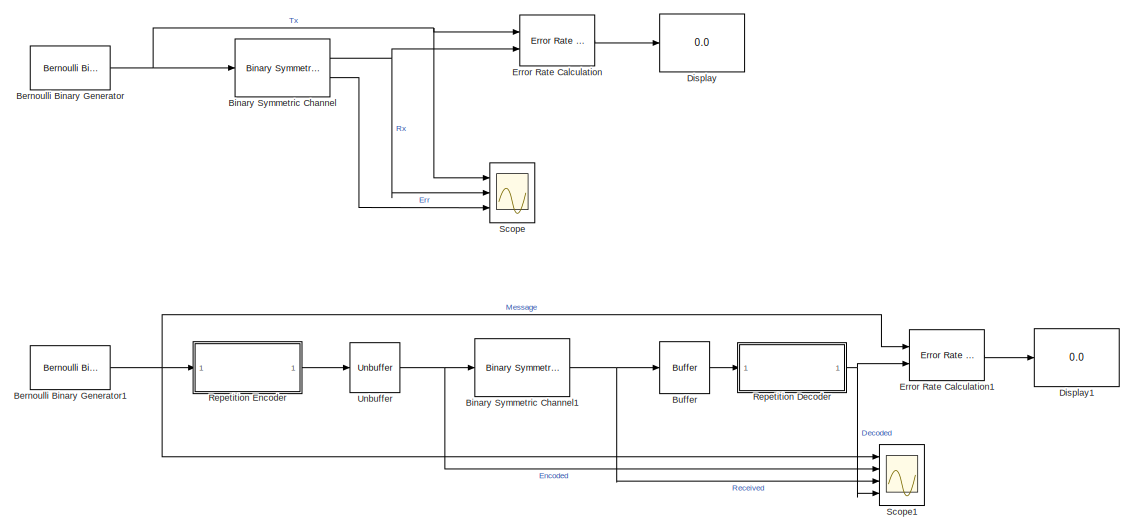
[diagram: root canvas - part 1/2, full width, top band]
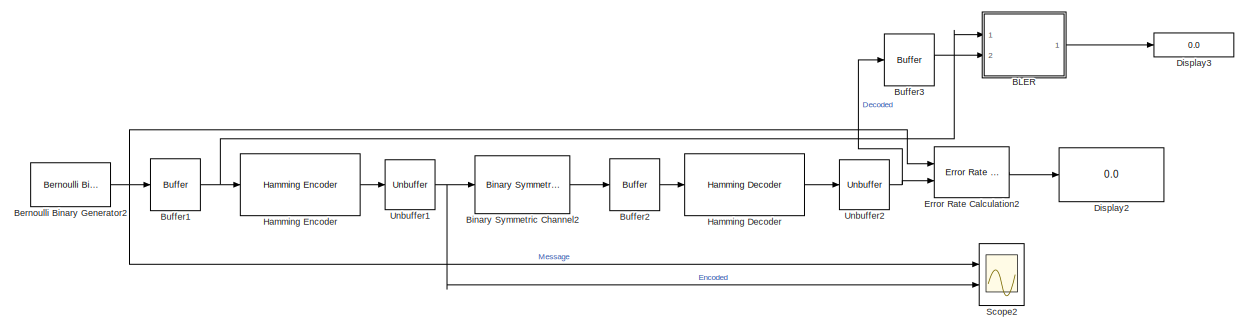
[diagram: root canvas - part 2/2, full width, bottom band]
MODEL slx_ba08aac00ad4
KIND model
CONFIG AbsTol = auto
CONFIG EnableMultiTasking = off
CONFIG FixedStep = auto
CONFIG MaxStep = auto
CONFIG MinStep = auto
CONFIG RelTol = 1e-3
CONFIG SampleTimeConstraint = Unconstrained
CONFIG SolverName = VariableStepAuto
CONFIG StartTime = 0.0
CONFIG StopTime = 100000
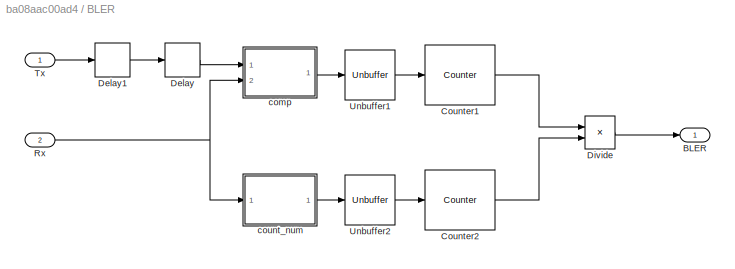
BLOCK [SubSystem] BLER
  Ports = [2, 1]
  RequestExecContextInheritance = off
BLOCK [Outport] BLER/BLER
BLOCK [Reference] BLER/Counter1  REF=dspswit3/Counter
  Ports = [1, 1]
  SourceBlock = dspswit3/Counter
  SourceProductBaseCode = DS
  SourceType = Counter
BLOCK [Reference] BLER/Counter2  REF=dspswit3/Counter
  Ports = [1, 1]
  SourceBlock = dspswit3/Counter
  SourceProductBaseCode = DS
  SourceType = Counter
BLOCK [Delay] BLER/Delay
  DelayLength = 1
  InitialCondition = 0
  InputPortMap = u0
  Ports = [1, 1]
BLOCK [Delay] BLER/Delay1
  DelayLength = 1
  InitialCondition = 0
  InputPortMap = u0
  Ports = [1, 1]
BLOCK [Product] BLER/Divide
  Inputs = */
  Ports = [2, 1]
BLOCK [Inport] BLER/Rx
  Port = 2
BLOCK [Inport] BLER/Tx
BLOCK [Unbuffer] BLER/Unbuffer1
  Ports = [1, 1]
BLOCK [Unbuffer] BLER/Unbuffer2
  Ports = [1, 1]
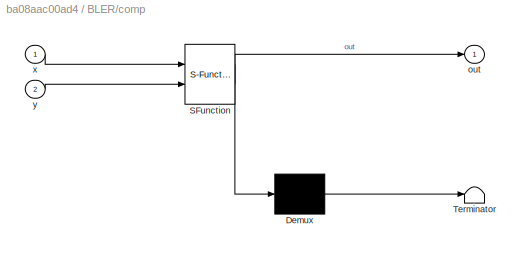
BLOCK [SubSystem] BLER/comp
  ErrorFcn = Stateflow.Translate.translate
  PermitHierarchicalResolution = ExplicitOnly
  Ports = [2, 1]
  RequestExecContextInheritance = off
  SFBlockType = MATLAB Function
  TreatAsAtomicUnit = on
BLOCK [Demux] BLER/comp/ Demux 
  Outputs = 1
  Ports = [1, 1]
BLOCK [S-Function] BLER/comp/ SFunction 
  EnableBusSupport = on
  FunctionName = sf_sfun
  PortCounts = [2 2]
  Ports = [2, 2]
  SFcnIsStateOwnerBlock = off
  SFunctionDeploymentMode = off
  Tag = Stateflow S-Function 3
BLOCK [Terminator] BLER/comp/ Terminator 
BLOCK [Outport] BLER/comp/out
BLOCK [Inport] BLER/comp/x
BLOCK [Inport] BLER/comp/y
  Port = 2
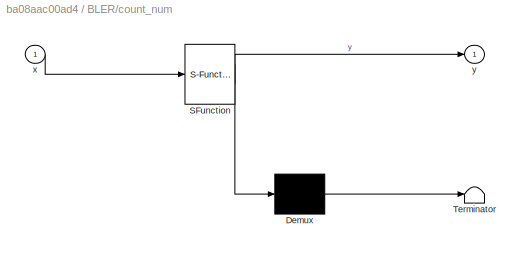
BLOCK [SubSystem] BLER/count_num
  ErrorFcn = Stateflow.Translate.translate
  PermitHierarchicalResolution = ExplicitOnly
  Ports = [1, 1]
  RequestExecContextInheritance = off
  SFBlockType = MATLAB Function
  TreatAsAtomicUnit = on
BLOCK [Demux] BLER/count_num/ Demux 
  Outputs = 1
  Ports = [1, 1]
BLOCK [S-Function] BLER/count_num/ SFunction 
  EnableBusSupport = on
  FunctionName = sf_sfun
  PortCounts = [1 2]
  Ports = [1, 2]
  SFcnIsStateOwnerBlock = off
  SFunctionDeploymentMode = off
  Tag = Stateflow S-Function 4
BLOCK [Terminator] BLER/count_num/ Terminator 
BLOCK [Inport] BLER/count_num/x
BLOCK [Outport] BLER/count_num/y
BLOCK [Reference] Bernoulli Binary Generator  REF=commrandsrc3/Bernoulli Binary
Generator
  Ports = [0, 1]
  SourceBlock = commrandsrc3/Bernoulli Binary\nGenerator
  SourceProductBaseCode = CM
  SourceType = Bernoulli Binary Generator
BLOCK [Reference] Bernoulli Binary Generator1  REF=commrandsrc3/Bernoulli Binary
Generator
  Ports = [0, 1]
  SourceBlock = commrandsrc3/Bernoulli Binary\nGenerator
  SourceProductBaseCode = CM
  SourceType = Bernoulli Binary Generator
BLOCK [Reference] Bernoulli Binary Generator2  REF=commrandsrc3/Bernoulli Binary
Generator
  Ports = [0, 1]
  SourceBlock = commrandsrc3/Bernoulli Binary\nGenerator
  SourceProductBaseCode = CM
  SourceType = Bernoulli Binary Generator
BLOCK [Reference] Binary Symmetric Channel  REF=commchan3/Binary Symmetric
Channel
  Ports = [1, 2]
  SourceBlock = commchan3/Binary Symmetric\nChannel
  SourceProductBaseCode = CM
  SourceType = Binary Symmetric Channel
BLOCK [Reference] Binary Symmetric Channel1  REF=commchan3/Binary Symmetric
Channel
  Ports = [1, 1]
  SourceBlock = commchan3/Binary Symmetric\nChannel
  SourceProductBaseCode = CM
  SourceType = Binary Symmetric Channel
BLOCK [Reference] Binary Symmetric Channel2  REF=commchan3/Binary Symmetric
Channel
  Ports = [1, 1]
  SourceBlock = commchan3/Binary Symmetric\nChannel
  SourceProductBaseCode = CM
  SourceType = Binary Symmetric Channel
BLOCK [Buffer] Buffer
  N = 7
  OutputFrames = off
BLOCK [Buffer] Buffer1
  N = 26
  OutputFrames = off
BLOCK [Buffer] Buffer2
  N = 31
  OutputFrames = off
BLOCK [Buffer] Buffer3
  N = 26
  OutputFrames = off
BLOCK [Display] Display
  Decimation = 1
  Ports = [1]
BLOCK [Display] Display1
  Decimation = 1
  Ports = [1]
BLOCK [Display] Display2
  Decimation = 1
  Ports = [1]
BLOCK [Display] Display3
  Decimation = 1
  Ports = [1]
BLOCK [Reference] Error Rate Calculation  REF=commsink2/Error Rate
Calculation
  Ports = [2, 1]
  SourceBlock = commsink2/Error Rate\nCalculation
  SourceProductBaseCode = CM
  SourceType = Error Rate Calculation
BLOCK [Reference] Error Rate Calculation1  REF=commsink2/Error Rate
Calculation
  Ports = [2, 1]
  SourceBlock = commsink2/Error Rate\nCalculation
  SourceProductBaseCode = CM
  SourceType = Error Rate Calculation
BLOCK [Reference] Error Rate Calculation2  REF=commsink2/Error Rate
Calculation
  Ports = [2, 1]
  SourceBlock = commsink2/Error Rate\nCalculation
  SourceProductBaseCode = CM
  SourceType = Error Rate Calculation
BLOCK [Reference] Hamming Decoder  REF=commblkcod2/Hamming Decoder
  Ports = [1, 1]
  SourceBlock = commblkcod2/Hamming Decoder
  SourceProductBaseCode = CM
  SourceType = Hamming Decoder
BLOCK [Reference] Hamming Encoder  REF=commblkcod2/Hamming Encoder
  Ports = [1, 1]
  SourceBlock = commblkcod2/Hamming Encoder
  SourceProductBaseCode = CM
  SourceType = Hamming Encoder
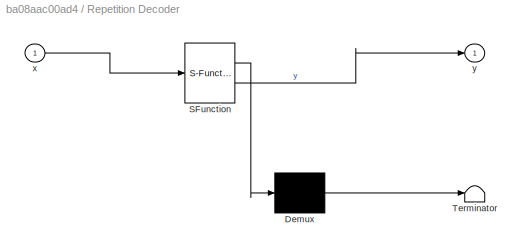
BLOCK [SubSystem] Repetition Decoder
  ErrorFcn = Stateflow.Translate.translate
  PermitHierarchicalResolution = ExplicitOnly
  Ports = [1, 1]
  RequestExecContextInheritance = off
  SFBlockType = MATLAB Function
  TreatAsAtomicUnit = on
BLOCK [Demux] Repetition Decoder/ Demux 
  Outputs = 1
  Ports = [1, 1]
BLOCK [S-Function] Repetition Decoder/ SFunction 
  EnableBusSupport = on
  FunctionName = sf_sfun
  PortCounts = [1 2]
  Ports = [1, 2]
  SFcnIsStateOwnerBlock = off
  SFunctionDeploymentMode = off
  Tag = Stateflow S-Function 1
BLOCK [Terminator] Repetition Decoder/ Terminator 
BLOCK [Inport] Repetition Decoder/x
BLOCK [Outport] Repetition Decoder/y
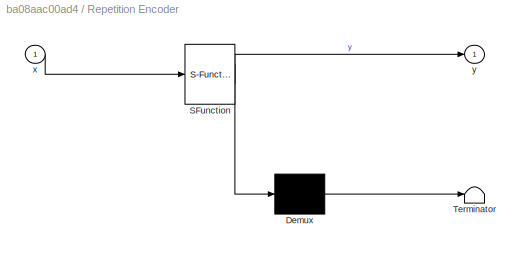
BLOCK [SubSystem] Repetition Encoder 
  ErrorFcn = Stateflow.Translate.translate
  PermitHierarchicalResolution = ExplicitOnly
  Ports = [1, 1]
  RequestExecContextInheritance = off
  SFBlockType = MATLAB Function
  TreatAsAtomicUnit = on
BLOCK [Demux] Repetition Encoder / Demux 
  Outputs = 1
  Ports = [1, 1]
BLOCK [S-Function] Repetition Encoder / SFunction 
  EnableBusSupport = on
  FunctionName = sf_sfun
  Parameters = n
  PortCounts = [1 2]
  Ports = [1, 2]
  SFcnIsStateOwnerBlock = off
  SFunctionDeploymentMode = off
  Tag = Stateflow S-Function 2
BLOCK [Terminator] Repetition Encoder / Terminator 
BLOCK [Inport] Repetition Encoder /x
BLOCK [Outport] Repetition Encoder /y
BLOCK [Scope] Scope
  Floating = off
  NumInputPorts = 3
  Ports = [3]
  ScopeSpecificationString = Simulink.scopes.TimeScopeBlockCfg('CurrentConfiguration', extmgr.ConfigurationSet(extmgr.Configuration('Core','General UI',true),extmgr.Configuration('Core','Source UI',true),extmgr.Configuration('Sources','WiredSimulink',true),extmgr.Configuration('Visuals','Time Domain',true,'SerializedDisplays',{struct('MinYLimReal','-0.125','MaxYLimReal','1.125','YLabelReal','','MinYLimMag','0.00000','MaxYLimM...<+2729ch>
BLOCK [Scope] Scope1
  Floating = off
  NumInputPorts = 4
  Ports = [4]
  ScopeSpecificationString = Simulink.scopes.TimeScopeBlockCfg('CurrentConfiguration', extmgr.ConfigurationSet(extmgr.Configuration('Core','General UI',true),extmgr.Configuration('Core','Source UI',true),extmgr.Configuration('Sources','WiredSimulink',true,'DataLoggingVariableName','ScopeData1'),extmgr.Configuration('Visuals','Time Domain',true,'SerializedDisplays',{struct('MinYLimReal','-0.125','MaxYLimReal','1.125','YLabelRe...<+3523ch>
BLOCK [Scope] Scope2
  Floating = off
  NumInputPorts = 2
  Ports = [2]
  ScopeSpecificationString = Simulink.scopes.TimeScopeBlockCfg('CurrentConfiguration', extmgr.ConfigurationSet(extmgr.Configuration('Core','General UI',true),extmgr.Configuration('Core','Source UI',true),extmgr.Configuration('Sources','WiredSimulink',true,'DataLoggingVariableName','ScopeData2'),extmgr.Configuration('Visuals','Time Domain',true,'SerializedDisplays',{struct('MinYLimReal','-0.125','MaxYLimReal','1.125','YLabelRe...<+2102ch>
BLOCK [Unbuffer] Unbuffer
  Ports = [1, 1]
BLOCK [Unbuffer] Unbuffer1
  Ports = [1, 1]
BLOCK [Unbuffer] Unbuffer2
  Ports = [1, 1]
LINE BLER/Counter1:1 -> BLER/Divide:1
LINE BLER/Counter2:1 -> BLER/Divide:2
LINE BLER/Delay1:1 -> BLER/Delay:1
LINE BLER/Delay:1 -> BLER/comp:1
LINE BLER/Divide:1 -> BLER/BLER:1
NET BLER/Rx:1 -> BLER/comp:2, BLER/count_num:1
LINE BLER/Tx:1 -> BLER/Delay1:1
LINE BLER/Unbuffer1:1 -> BLER/Counter1:1
LINE BLER/Unbuffer2:1 -> BLER/Counter2:1
LINE BLER/comp:1 -> BLER/Unbuffer1:1
LINE BLER/count_num:1 -> BLER/Unbuffer2:1
LINE BLER:1 -> Display3:1
NET Bernoulli Binary Generator1:1 -> Error Rate Calculation1:1, Repetition Encoder :1, Scope1:1
NET Bernoulli Binary Generator2:1 -> Buffer1:1, Error Rate Calculation2:1, Scope2:1
NET Bernoulli Binary Generator:1 -> Binary Symmetric Channel:1, Error Rate Calculation:1, Scope:1
NET Binary Symmetric Channel1:1 -> Buffer:1, Scope1:3
LINE Binary Symmetric Channel2:1 -> Buffer2:1
NET Binary Symmetric Channel:1 -> Error Rate Calculation:2, Scope:2
LINE Binary Symmetric Channel:2 -> Scope:3
NET Buffer1:1 -> BLER:1, Hamming Encoder:1
LINE Buffer2:1 -> Hamming Decoder:1
LINE Buffer3:1 -> BLER:2
LINE Buffer:1 -> Repetition Decoder:1
LINE Error Rate Calculation1:1 -> Display1:1
LINE Error Rate Calculation2:1 -> Display2:1
LINE Error Rate Calculation:1 -> Display:1
LINE Hamming Decoder:1 -> Unbuffer2:1
LINE Hamming Encoder:1 -> Unbuffer1:1
NET Repetition Decoder:1 -> Error Rate Calculation1:2, Scope1:4
LINE Repetition Encoder :1 -> Unbuffer:1
NET Unbuffer1:1 -> Binary Symmetric Channel2:1, Scope2:2
NET Unbuffer2:1 -> Buffer3:1, Error Rate Calculation2:2
NET Unbuffer:1 -> Binary Symmetric Channel1:1, Scope1:2
note: NET lines group one-source signal fan-out (src -> all destinations, sorted); 1:1 wires keep LINE
CHART Repetition Encoder  states=1 transitions=1
  STATE_LABEL 'eML_blk_kernel()'
  STATE_LABEL "SCRIPT:\nfunction y = repetition_encoder(x, n)\ny = repelem([x],n)';\n"
CHART BLER/comp states=1 transitions=1
  STATE_LABEL 'eML_blk_kernel()'
  STATE_LABEL 'SCRIPT:\nfunction out = comp(x,y)\nlen = length(x);\nout = zeros(len,1);\nfor p = 1:len\n    if (x(p) ~= y(p))\n        out(1,1) = 1;\n        return\n    end\nend\nreturn\n'
CHART BLER/count_num states=1 transitions=1
  STATE_LABEL 'eML_blk_kernel()'
  STATE_LABEL 'SCRIPT:\nfunction y = count_num(x)\nlen = length(x);\ny = zeros(len,1);\ny(1,1) = 1;\nreturn\n'
CHART Repetition Decoder states=1 transitions=1
  STATE_LABEL 'eML_blk_kernel()'
  STATE_LABEL 'SCRIPT:\nfunction y = repetition_decoder(x)\nn0 = length(find(x == 0));\nn1 = length(find(x == 1));\nif(n0 >= n1)\n    y = 0;\nelse\n    y = 1;\nend'
CHART  states=0 transitions=0
CHART  states=0 transitions=0
CHART  states=0 transitions=0
CHART  states=0 transitions=0
